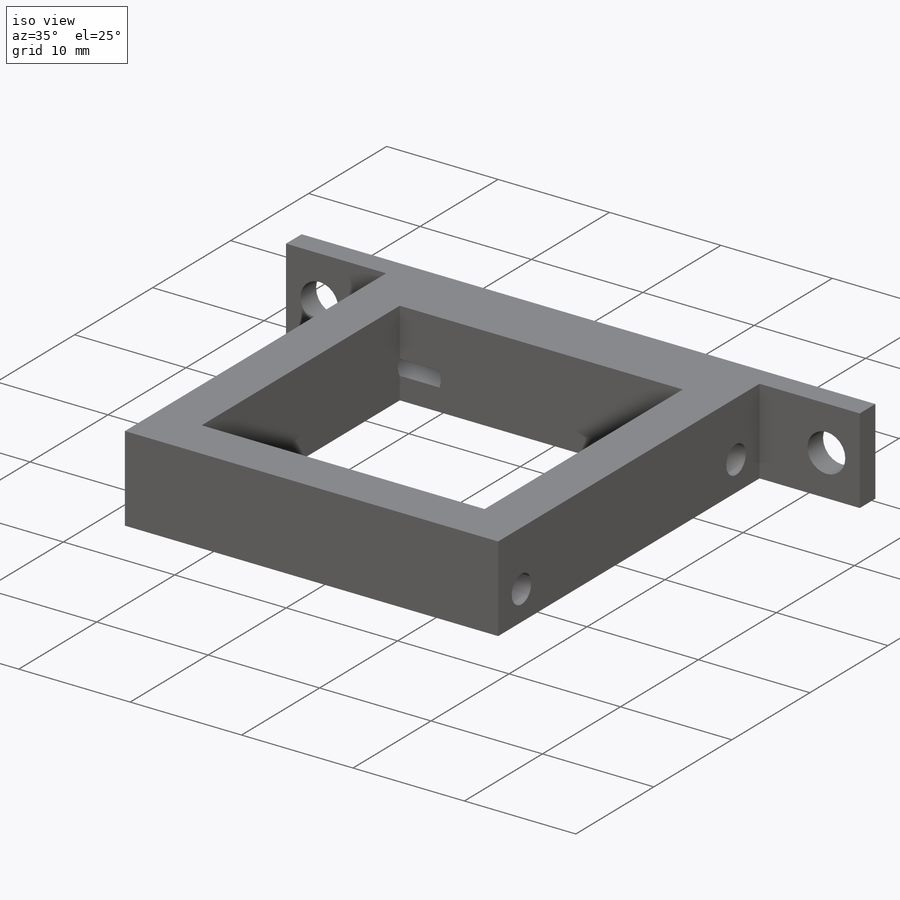
[diagram: iso view]
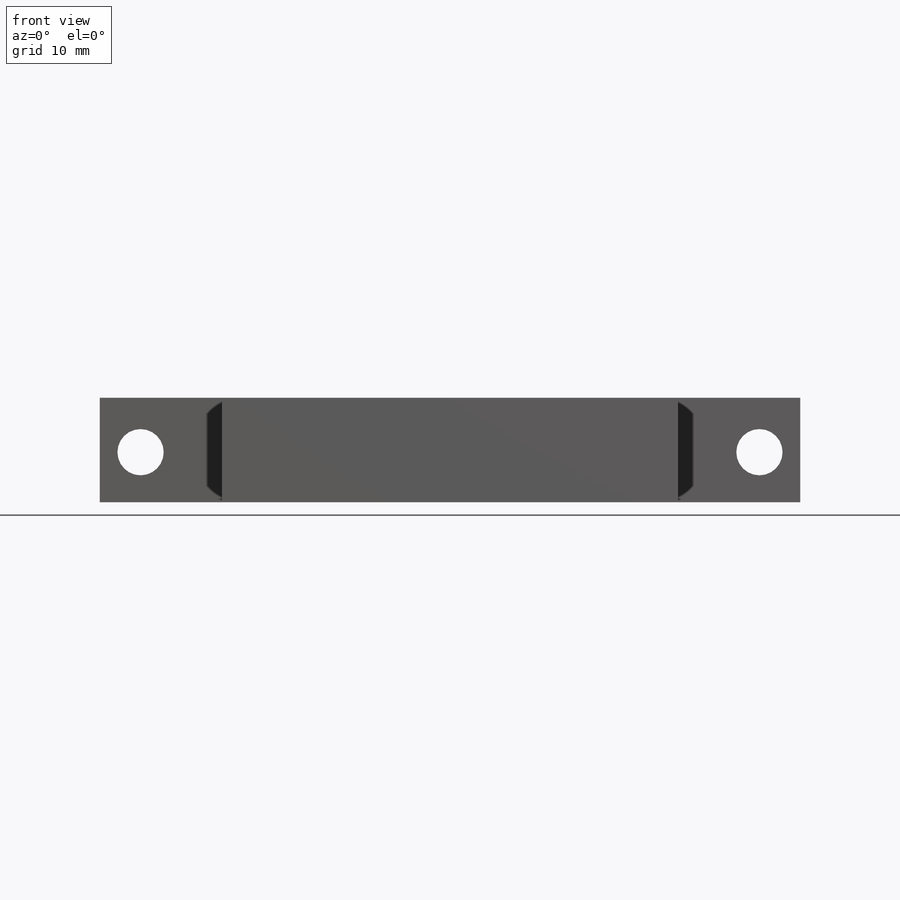
[diagram: front view]
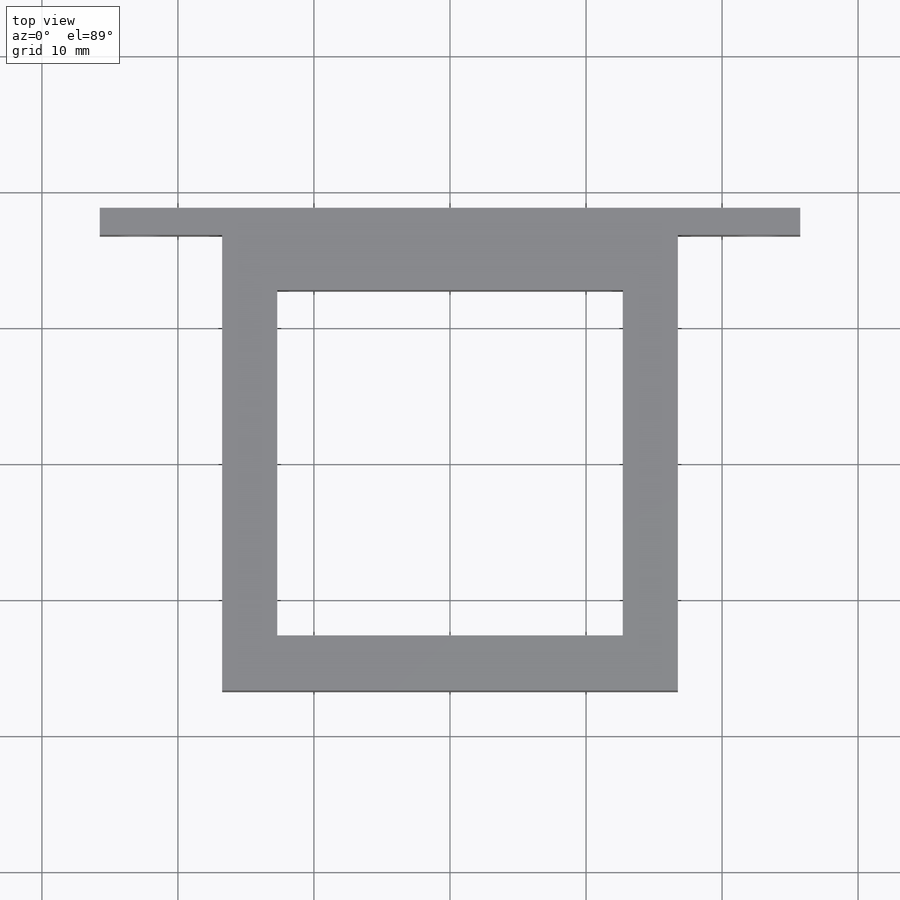
[diagram: top view]
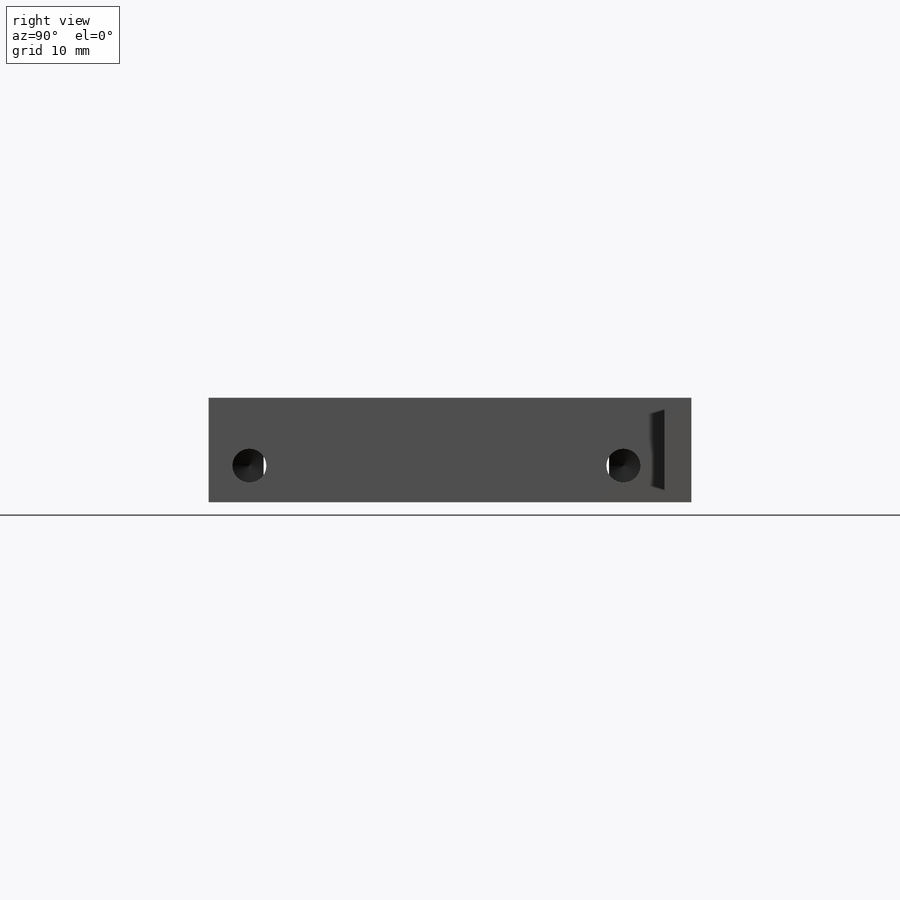
[diagram: right view]
SOLIDWORKS PART (.sldprt)
format: sldprt  version: not decoded by parser v0  size: 500,736 bytes
history: native  units: mm
features: sketch x18, hole x5, extrude x4, cut_extrude x4, material x1 (+12 scaffold rows collapsed)
feature tree (44):
  scaffold x12  (default folders/planes/origin — collapsed)
  material  "Material <not specified>"
  sketch  "Sketch1"  dims[D1=33.5mm D2=33.5mm]
  extrude  "Boss-Extrude1"  Depth=70mm
  hole  "M3x0.5 Tapped Hole1"  Diameter=2.5mm Depth=7.62mm
  sketch  "3DSketch3"  dims[c1.D1=30.5mm c1.D2=5.0mm c1.D3=5.0mm c2.D2=3.0mm c2.D3=3.0mm c2.D4=30.5mm]
  sketch  "Sketch5"  dims[hole-wizard template sketch: 47 standard entries collapsed; hole parameters kept: c15.Tap Drill Depth=7.62mm c15.D3=~14.816244mm c15.Drill Angle=118.0deg]
  hole  "M3x0.5 Tapped Hole2"  Diameter=2.5mm Depth=7.62mm
  sketch  "3DSketch4"  dims[D1=3.0mm D2=3.0mm D3=6.0mm D4=6.0mm]
  sketch  "Sketch6"  dims[hole-wizard template sketch: 47 standard entries collapsed; hole parameters kept: c15.Tap Drill Depth=7.62mm c15.D3=~14.816244mm c15.Drill Angle=118.0deg]
  sketch  "Sketch7"  dims[D1=6.0mm D2=11.0mm D3=50.0mm]
  extrude  "Boss-Extrude2"  Depth=3mm
  sketch  "Sketch8"  dims[D1=6.0mm D2=0.0mm D3=50.0mm D4=11.0mm]
  extrude  "Boss-Extrude3"  Depth=3mm
  hole  "M3 Clearance Hole1"  Diameter=3.4mm Depth=33.5mm
  sketch  "3DSketch5"  dims[D1=40.0mm D2=15.0mm D3=3.0mm D4=3.0mm D5=3.0mm D6=3.0mm D7=40.0mm D8=15.0mm]
  sketch  "Sketch10"  dims[hole-wizard template sketch: 60 standard entries collapsed; hole parameters kept: c18.Thru Hole Depth=33.5mm]
  sketch  "Sketch12"  dims[D1=13.0mm D2=12.0mm]
  cut_extrude  "Cut-Extrude2"  Depth=32.5mm
  hole  "M3x0.5 Tapped Hole3"  Diameter=2.5mm Depth=7.62mm
  sketch  "Sketch15"  dims[D1=3.0mm D2=6.0mm D3=3.0mm D4=6.0mm]
  sketch  "Sketch13"  dims[hole-wizard template sketch: 47 standard entries collapsed; hole parameters kept: c15.Tap Drill Depth=7.62mm c15.D3=~14.816244mm c15.Drill Angle=118.0deg]
  sketch  "Sketch16"
  cut_extrude  "Cut-Extrude3"  [1 undecoded]
  sketch  "Sketch17"  dims[D1=9.0mm D2=9.0mm]
  extrude  "Boss-Extrude4"  Depth=2mm
  sketch  "Sketch22"
  cut_extrude  "Cut-Extrude5"  [1 undecoded]
  hole  "M3 Clearance Hole3"  Diameter=3.4mm Depth=2mm
  sketch  "3DSketch7"  dims[D1=3.0mm D2=3.0mm D3=4.0mm D4=4.0mm]
  sketch  "Sketch23"  dims[hole-wizard template sketch: 61 standard entries collapsed; hole parameters above]
  sketch  "Sketch24"  dims[D1=4.05mm D2=25.4mm D3=4.05mm D4=25.4mm]
  cut_extrude  "Cut-Extrude6"  [1 undecoded]
decode coverage: 26 of 31 modeling features carry decoded parameters
note: ~ marks probable driven/reference dimensions
note: 3 parameter values undecoded
summary: Diameter pulled from absorbed wizard sketch | no parameter record found for 3 features
note: suppression state not decoded; provenance and decode notes live in map.json
